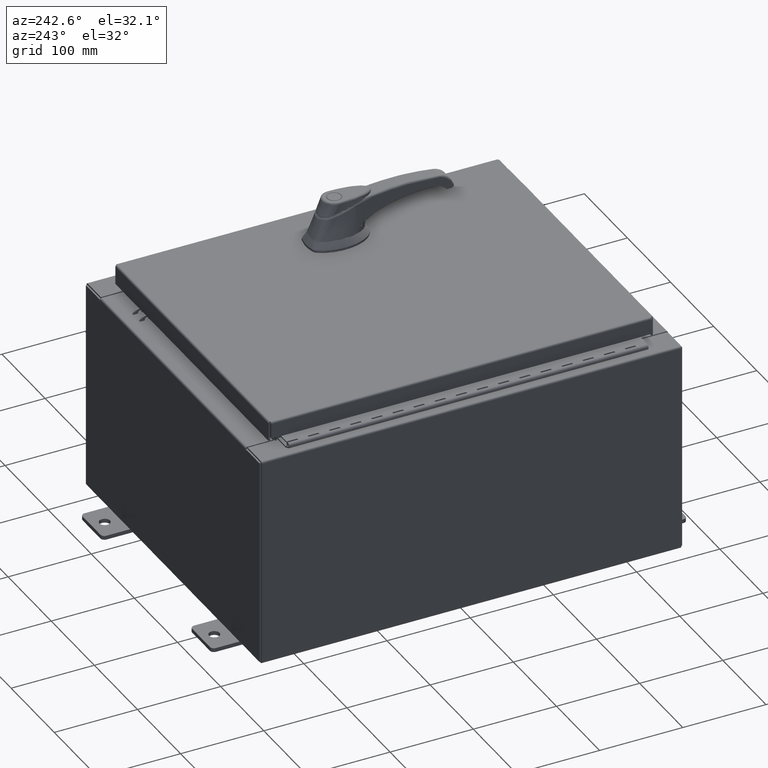
[diagram: clean part render]
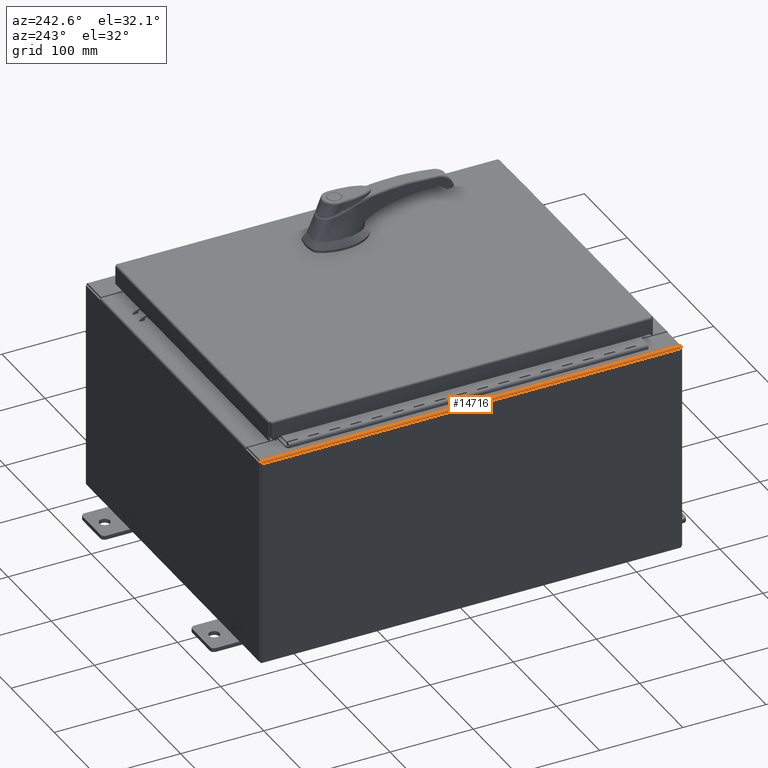
[diagram: same view with one face highlighted and labeled with its STEP entity id]
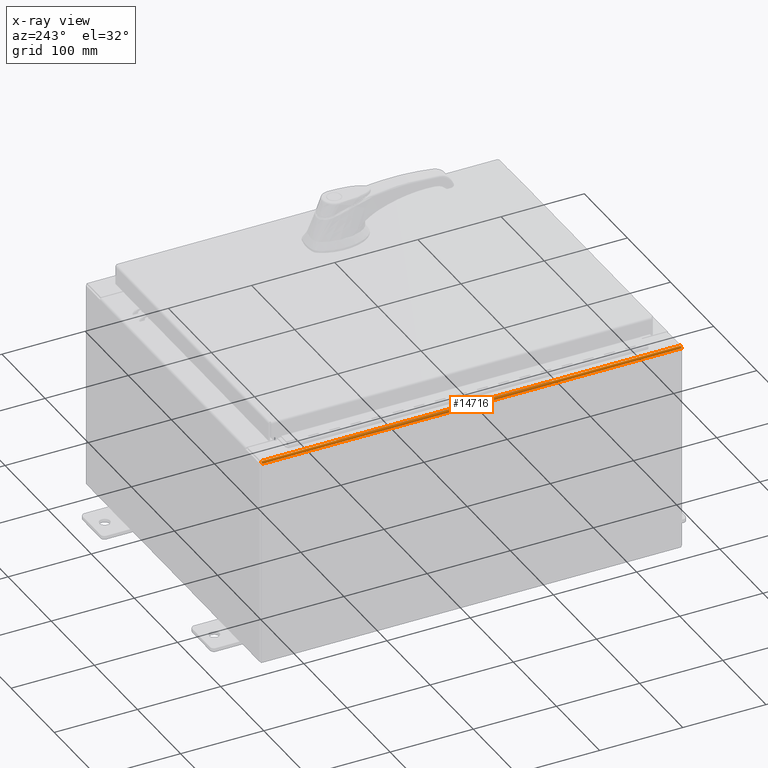
[diagram: x-ray of the same camera — body ghosted, the highlighted face saturated]
A machine part, auxiliary view. The second image highlights one B-rep face of the part: STEP entity #14716.
The next image is the same camera in x-ray: the body ghosted, the highlighted face saturated — about 0% of this face is hidden behind the body in this view.
In plain terms, the highlighted cylindrical surface (edge-blend (fillet) strip) has radius 2.2276 mm, axis along (-0, -1, -0).
Its self-contained STEP definition (entity closure, byte-faithful):
#1203 = AXIS2_PLACEMENT_3D ( 'NONE', #45616, #104586, #54041 ) ;
#3042 = CARTESIAN_POINT ( 'NONE',  ( -8.000000000000032000, -9.925300000000000000, 9.837599999999998300 ) ) ;
#4412 = FACE_OUTER_BOUND ( 'NONE', #69603, .T. ) ;
#5572 = VERTEX_POINT ( 'NONE', #98174 ) ;
#6177 = ORIENTED_EDGE ( 'NONE', *, *, #34626, .T. ) ;
#14716 = ADVANCED_FACE ( 'NONE', ( #4412 ), #66503, .T. ) ;
#16875 = VERTEX_POINT ( 'NONE', #3042 ) ;
#29428 = DIRECTION ( 'NONE',  ( -0.0000000000000000000, -1.000000000000000000, -0.0000000000000000000 ) ) ;
#31142 = CARTESIAN_POINT ( 'NONE',  ( -7.912300000000032100, 9.925299999999998200, 9.837599999999998300 ) ) ;
#33629 = CIRCLE ( 'NONE', #1203, 0.08769999999999918100 ) ;
#34626 = EDGE_CURVE ( 'NONE', #38391, #5572, #103731, .T. ) ;
#38391 = VERTEX_POINT ( 'NONE', #81326 ) ;
#39601 = DIRECTION ( 'NONE',  ( 0.0000000000000000000, 0.0000000000000000000, -1.000000000000000000 ) ) ;
#43408 = ORIENTED_EDGE ( 'NONE', *, *, #93546, .F. ) ;
#45616 = CARTESIAN_POINT ( 'NONE',  ( -7.912300000000032100, -9.925300000000000000, 9.837599999999998300 ) ) ;
#54041 = DIRECTION ( 'NONE',  ( 0.0000000000000000000, 0.0000000000000000000, -1.000000000000000000 ) ) ;
#56962 = CIRCLE ( 'NONE', #101087, 0.08769999999999918100 ) ;
#58903 = VECTOR ( 'NONE', #99170, 39.37007874015748100 ) ;
#62913 = DIRECTION ( 'NONE',  ( 0.0000000000000000000, 0.0000000000000000000, 1.000000000000000000 ) ) ;
#66503 = CYLINDRICAL_SURFACE ( 'NONE', #108933, 0.08769999999999918100 ) ;
#69603 = EDGE_LOOP ( 'NONE', ( #43408, #73944, #6177, #79810 ) ) ;
#73944 = ORIENTED_EDGE ( 'NONE', *, *, #90696, .F. ) ;
#79511 = DIRECTION ( 'NONE',  ( 0.0000000000000000000, 1.000000000000000000, 0.0000000000000000000 ) ) ;
#79810 = ORIENTED_EDGE ( 'NONE', *, *, #95212, .F. ) ;
#80807 = VERTEX_POINT ( 'NONE', #98446 ) ;
#81326 = CARTESIAN_POINT ( 'NONE',  ( -7.912300000000032100, -9.925300000000001800, 9.925300000000000000 ) ) ;
#81822 = CARTESIAN_POINT ( 'NONE',  ( -7.912300000000032100, 9.925299999999998200, 9.925299999999998200 ) ) ;
#88361 = CARTESIAN_POINT ( 'NONE',  ( -7.912300000000032100, -9.925300000000001800, 9.837599999999998300 ) ) ;
#90082 = DIRECTION ( 'NONE',  ( 0.0000000000000000000, 1.000000000000000000, 0.0000000000000000000 ) ) ;
#90696 = EDGE_CURVE ( 'NONE', #38391, #16875, #33629, .T. ) ;
#93546 = EDGE_CURVE ( 'NONE', #16875, #80807, #102026, .T. ) ;
#95212 = EDGE_CURVE ( 'NONE', #80807, #5572, #56962, .T. ) ;
#98174 = CARTESIAN_POINT ( 'NONE',  ( -7.912300000000032100, 9.925299999999998200, 9.925299999999998200 ) ) ;
#98446 = CARTESIAN_POINT ( 'NONE',  ( -8.000000000000032000, 9.925299999999998200, 9.837599999999998300 ) ) ;
#99170 = DIRECTION ( 'NONE',  ( -0.0000000000000000000, 1.000000000000000000, -1.100963394019027600E-016 ) ) ;
#99395 = VECTOR ( 'NONE', #79511, 39.37007874015748100 ) ;
#101087 = AXIS2_PLACEMENT_3D ( 'NONE', #31142, #90082, #39601 ) ;
#102026 = LINE ( 'NONE', #104949, #99395 ) ;
#103731 = LINE ( 'NONE', #81822, #58903 ) ;
#104586 = DIRECTION ( 'NONE',  ( -0.0000000000000000000, -1.000000000000000000, -0.0000000000000000000 ) ) ;
#104949 = CARTESIAN_POINT ( 'NONE',  ( -8.000000000000032000, -9.925300000000001800, 9.837599999999998300 ) ) ;
#108933 = AXIS2_PLACEMENT_3D ( 'NONE', #88361, #29428, #62913 ) ;